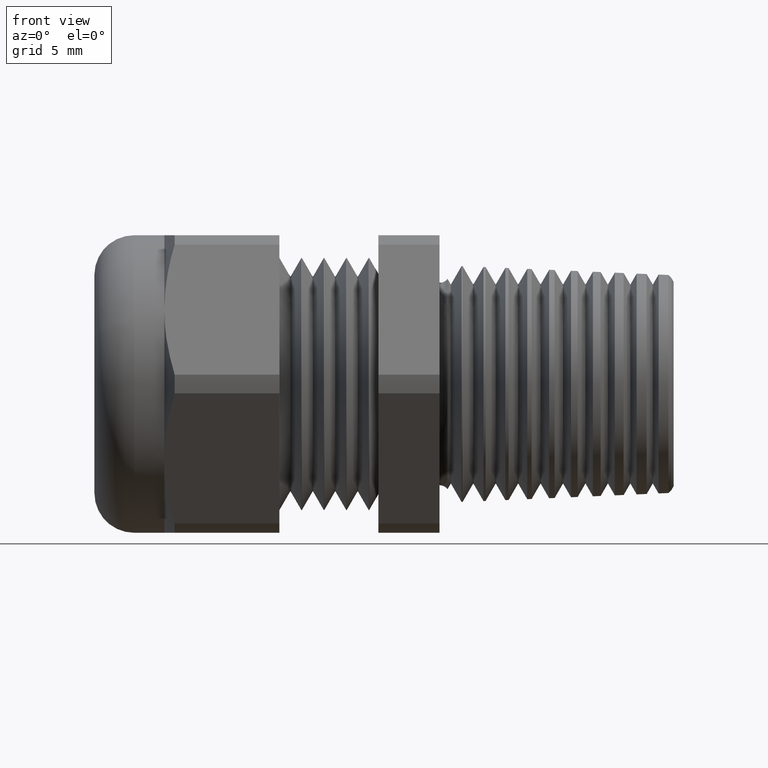
[diagram: clean part render]
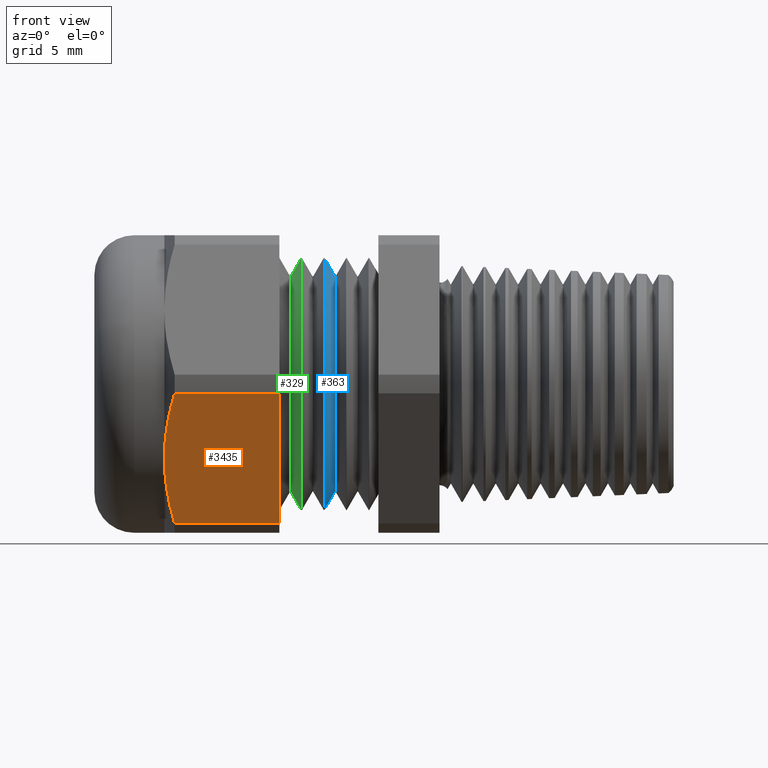
[diagram: same view with three faces highlighted in distinct colors, each labeled with its STEP entity id]
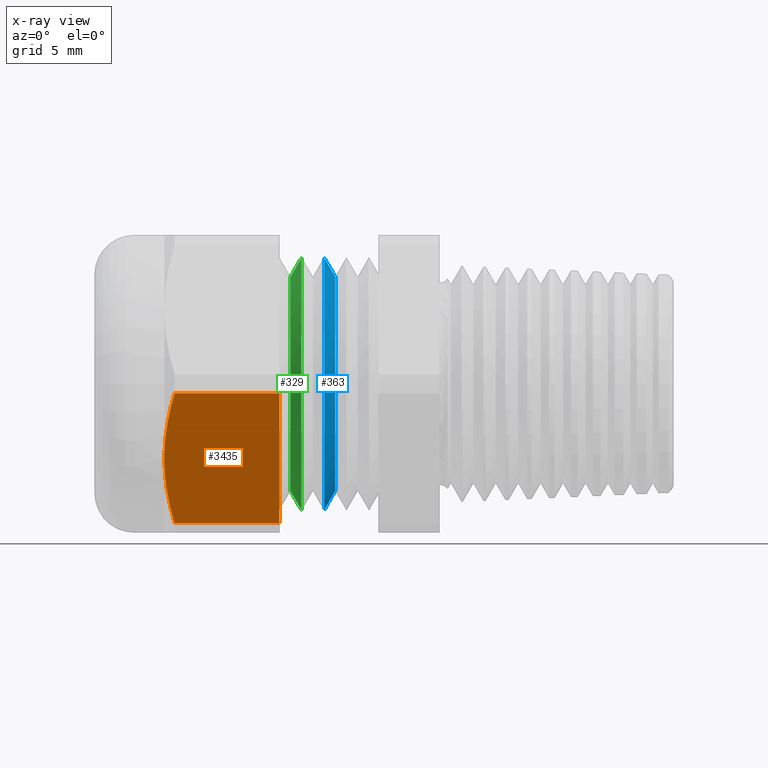
[diagram: x-ray of the same camera — body ghosted, the three highlighted faces saturated]
A machine part, front view with three faces highlighted in distinct colors.
The next image is the same camera in x-ray (body ghosted, the three faces saturated) — at least one of them is partly hidden behind the body in this view.
Their STEP definitions:

[orange] entity #3435 — the highlighted planar face has unit normal (0, -0.866, -0.5).
#865 = CARTESIAN_POINT ( 'NONE',  ( -0.4037500000000000500, -0.2301881248222757400, -0.3513024725088117500 ) ) ;
#866 = DIRECTION ( 'NONE',  ( 1.000000000000000000, -0.0000000000000000000, -0.0000000000000000000 ) ) ;
#867 = VECTOR ( 'NONE', #866, 39.37007874015748100 ) ;
#868 = CARTESIAN_POINT ( 'NONE',  ( -1.893568786317334100, -0.2301881248222757400, -0.3513024725088117500 ) ) ;
#869 = LINE ( 'NONE', #868, #867 ) ;
#1099 = CARTESIAN_POINT ( 'NONE',  ( -0.6677692378864669200, -0.2301881248222757400, -0.3513024725088117500 ) ) ;
#1543 = DIRECTION ( 'NONE',  ( 0.0000000000000000000, 0.4999999999999998300, -0.8660254037844386000 ) ) ;
#1544 = DIRECTION ( 'NONE',  ( 0.0000000000000000000, -0.8660254037844387100, -0.4999999999999998900 ) ) ;
#1546 = CARTESIAN_POINT ( 'NONE',  ( -1.893568786317334100, -0.4193309280160532100, -0.02369752749118828400 ) ) ;
#1547 = AXIS2_PLACEMENT_3D ( 'NONE', #1546, #1544, #1543 ) ;
#1549 = FACE_OUTER_BOUND ( 'NONE', #3437, .T. ) ;
#1554 = PLANE ( 'NONE',  #1547 ) ;
#1570 = B_SPLINE_CURVE_WITH_KNOTS ( 'NONE', 3,
 ( #1627, #1626, #1625, #1624, #1623, #1622 ),
 .UNSPECIFIED., .F., .F.,
 ( 4, 2, 4 ),
 ( 2.361310733801481900E-007, 0.002424044080837156200, 0.004847852030600932100 ),
 .UNSPECIFIED. ) ;
#1571 = CARTESIAN_POINT ( 'NONE',  ( -0.6937499999999999800, -0.3247595264191643900, -0.1874999999999999200 ) ) ;
#1598 = CARTESIAN_POINT ( 'NONE',  ( -0.6677692378864669200, -0.2301881248222757400, -0.3513024725088117500 ) ) ;
#1599 = CARTESIAN_POINT ( 'NONE',  ( -0.6758195584202751900, -0.2456692767811521300, -0.3244883307563435900 ) ) ;
#1600 = CARTESIAN_POINT ( 'NONE',  ( -0.6823587424992738600, -0.2612741988924826000, -0.2974598128113639100 ) ) ;
#1601 = CARTESIAN_POINT ( 'NONE',  ( -0.6890958449295795400, -0.2849331685521923600, -0.2564812753060161700 ) ) ;
#1602 = CARTESIAN_POINT ( 'NONE',  ( -0.6908293426401993500, -0.2928614439435945300, -0.2427490995117096400 ) ) ;
#1603 = CARTESIAN_POINT ( 'NONE',  ( -0.6931602879428225800, -0.3088110433031368000, -0.2151235830606142700 ) ) ;
#1604 = CARTESIAN_POINT ( 'NONE',  ( -0.6937500000000000900, -0.3168132821342499200, -0.2012632988308260800 ) ) ;
#1605 = CARTESIAN_POINT ( 'NONE',  ( -0.6937499999999999800, -0.3247595264191643900, -0.1874999999999999200 ) ) ;
#1610 = B_SPLINE_CURVE_WITH_KNOTS ( 'NONE', 3,
 ( #1605, #1604, #1603, #1602, #1601, #1600, #1599, #1598 ),
 .UNSPECIFIED., .F., .F.,
 ( 4, 2, 2, 4 ),
 ( 0.004847852030600932100, 0.006051560003637237300, 0.007255267976673545100, 0.009662683922746159000 ),
 .UNSPECIFIED. ) ;
#1622 = CARTESIAN_POINT ( 'NONE',  ( -0.6937499999999999800, -0.3247595264191643900, -0.1874999999999999200 ) ) ;
#1623 = CARTESIAN_POINT ( 'NONE',  ( -0.6937499999999999800, -0.3407602263397259100, -0.1597859747809244600 ) ) ;
#1624 = CARTESIAN_POINT ( 'NONE',  ( -0.6913537581776820800, -0.3566287773148729100, -0.1323008382494728400 ) ) ;
#1625 = CARTESIAN_POINT ( 'NONE',  ( -0.6823975651380708200, -0.3881362572794259700, -0.07772828213240874600 ) ) ;
#1626 = CARTESIAN_POINT ( 'NONE',  ( -0.6758577677325461300, -0.4037762977196653900, -0.05063893745748192900 ) ) ;
#1627 = CARTESIAN_POINT ( 'NONE',  ( -0.6677692378864669200, -0.4193309280160532100, -0.02369752749118828700 ) ) ;
#1653 = DIRECTION ( 'NONE',  ( 0.0000000000000000000, -0.4999999999999998300, 0.8660254037844386000 ) ) ;
#1654 = VECTOR ( 'NONE', #1653, 39.37007874015748900 ) ;
#1655 = CARTESIAN_POINT ( 'NONE',  ( -0.4037499999999999400, -0.2452595264191646000, -0.3251980392017256900 ) ) ;
#1656 = LINE ( 'NONE', #1655, #1654 ) ;
#2475 = CARTESIAN_POINT ( 'NONE',  ( -0.6677692378864669200, -0.4193309280160532100, -0.02369752749118828700 ) ) ;
#2499 = DIRECTION ( 'NONE',  ( 1.000000000000000000, -0.0000000000000000000, -0.0000000000000000000 ) ) ;
#2500 = VECTOR ( 'NONE', #2499, 39.37007874015748100 ) ;
#2501 = CARTESIAN_POINT ( 'NONE',  ( -1.893568786317334100, -0.4193309280160532100, -0.02369752749118828400 ) ) ;
#2502 = LINE ( 'NONE', #2501, #2500 ) ;
#2547 = CARTESIAN_POINT ( 'NONE',  ( -0.4037500000000000500, -0.4193309280160532100, -0.02369752749118828400 ) ) ;
#3025 = EDGE_CURVE ( 'NONE', #3143, #3027, #869, .T. ) ;
#3027 = VERTEX_POINT ( 'NONE', #865 ) ;
#3143 = VERTEX_POINT ( 'NONE', #1099 ) ;
#3432 = ORIENTED_EDGE ( 'NONE', *, *, #3468, .T. ) ;
#3435 = ADVANCED_FACE ( 'NONE', ( #1549 ), #1554, .T. ) ;
#3437 = EDGE_LOOP ( 'NONE', ( #3442, #3432, #3464, #3472, #3478 ) ) ;
#3442 = ORIENTED_EDGE ( 'NONE', *, *, #3972, .F. ) ;
#3463 = VERTEX_POINT ( 'NONE', #1571 ) ;
#3464 = ORIENTED_EDGE ( 'NONE', *, *, #3477, .T. ) ;
#3468 = EDGE_CURVE ( 'NONE', #3954, #3463, #1570, .T. ) ;
#3472 = ORIENTED_EDGE ( 'NONE', *, *, #3025, .T. ) ;
#3477 = EDGE_CURVE ( 'NONE', #3463, #3143, #1610, .T. ) ;
#3478 = ORIENTED_EDGE ( 'NONE', *, *, #3484, .T. ) ;
#3484 = EDGE_CURVE ( 'NONE', #3027, #3977, #1656, .T. ) ;
#3954 = VERTEX_POINT ( 'NONE', #2475 ) ;
#3972 = EDGE_CURVE ( 'NONE', #3954, #3977, #2502, .T. ) ;
#3977 = VERTEX_POINT ( 'NONE', #2547 ) ;

[blue] entity #363 — the highlighted conical surface has half-angle 60 deg.
#121 = CARTESIAN_POINT ( 'NONE',  ( -0.2628611240625034500, 0.0000000000000000000, -0.2698875000000000000 ) ) ;
#136 = CARTESIAN_POINT ( 'NONE',  ( -0.2906388888888888900, 3.894248205155160100E-017, -0.3180000000000000000 ) ) ;
#161 = CARTESIAN_POINT ( 'NONE',  ( -0.2628611240625034500, 3.599653839163763600E-017, 0.2698875000000000000 ) ) ;
#181 = LINE ( 'NONE', #193, #192 ) ;
#190 = CARTESIAN_POINT ( 'NONE',  ( -0.2906388888888888900, 0.0000000000000000000, 0.3180000000000000000 ) ) ;
#191 = DIRECTION ( 'NONE',  ( -0.4999999999999947800, 1.060540212046017300E-016, -0.8660254037844417100 ) ) ;
#192 = VECTOR ( 'NONE', #191, 39.37007874015748100 ) ;
#193 = CARTESIAN_POINT ( 'NONE',  ( -0.2906388888888888900, 3.894248205155160100E-017, -0.3180000000000000000 ) ) ;
#304 = EDGE_CURVE ( 'NONE', #1291, #1097, #2691, .T. ) ;
#363 = ADVANCED_FACE ( 'NONE', ( #2828 ), #2830, .T. ) ;
#364 = ORIENTED_EDGE ( 'NONE', *, *, #304, .F. ) ;
#374 = EDGE_LOOP ( 'NONE', ( #378, #364, #407, #406 ) ) ;
#378 = ORIENTED_EDGE ( 'NONE', *, *, #1401, .F. ) ;
#406 = ORIENTED_EDGE ( 'NONE', *, *, #3971, .T. ) ;
#407 = ORIENTED_EDGE ( 'NONE', *, *, #460, .T. ) ;
#460 = EDGE_CURVE ( 'NONE', #1291, #1508, #4112, .T. ) ;
#1097 = VERTEX_POINT ( 'NONE', #121 ) ;
#1204 = VERTEX_POINT ( 'NONE', #136 ) ;
#1291 = VERTEX_POINT ( 'NONE', #161 ) ;
#1401 = EDGE_CURVE ( 'NONE', #1097, #1204, #181, .T. ) ;
#1508 = VERTEX_POINT ( 'NONE', #190 ) ;
#2503 = DIRECTION ( 'NONE',  ( 0.0000000000000000000, 0.0000000000000000000, -1.000000000000000000 ) ) ;
#2504 = DIRECTION ( 'NONE',  ( 1.000000000000000000, -0.0000000000000000000, -0.0000000000000000000 ) ) ;
#2505 = AXIS2_PLACEMENT_3D ( 'NONE', #2512, #2504, #2503 ) ;
#2506 = CIRCLE ( 'NONE', #2505, 0.3180000000000000000 ) ;
#2512 = CARTESIAN_POINT ( 'NONE',  ( -0.2906388888888888900, 0.0000000000000000000, 0.0000000000000000000 ) ) ;
#2689 = AXIS2_PLACEMENT_3D ( 'NONE', #2692, #2695, #2694 ) ;
#2691 = CIRCLE ( 'NONE', #2689, 0.2698875000000000000 ) ;
#2692 = CARTESIAN_POINT ( 'NONE',  ( -0.2628611240625034500, 0.0000000000000000000, 0.0000000000000000000 ) ) ;
#2694 = DIRECTION ( 'NONE',  ( 0.0000000000000000000, 0.0000000000000000000, -1.000000000000000000 ) ) ;
#2695 = DIRECTION ( 'NONE',  ( 1.000000000000000000, -0.0000000000000000000, -0.0000000000000000000 ) ) ;
#2825 = AXIS2_PLACEMENT_3D ( 'NONE', #2829, #2831, #2827 ) ;
#2827 = DIRECTION ( 'NONE',  ( 0.0000000000000000000, 0.0000000000000000000, 1.000000000000000000 ) ) ;
#2828 = FACE_OUTER_BOUND ( 'NONE', #374, .T. ) ;
#2829 = CARTESIAN_POINT ( 'NONE',  ( -0.2906388888888888900, 0.0000000000000000000, 0.0000000000000000000 ) ) ;
#2830 = CONICAL_SURFACE ( 'NONE', #2825, 0.3180000000000000000, 1.047197551196603800 ) ;
#2831 = DIRECTION ( 'NONE',  ( -1.000000000000000000, 0.0000000000000000000, 0.0000000000000000000 ) ) ;
#3971 = EDGE_CURVE ( 'NONE', #1508, #1204, #2506, .T. ) ;
#4104 = DIRECTION ( 'NONE',  ( -0.4999999999999947800, 0.0000000000000000000, 0.8660254037844417100 ) ) ;
#4105 = VECTOR ( 'NONE', #4104, 39.37007874015748100 ) ;
#4111 = CARTESIAN_POINT ( 'NONE',  ( -0.2906388888888888900, 0.0000000000000000000, 0.3180000000000000000 ) ) ;
#4112 = LINE ( 'NONE', #4111, #4105 ) ;

[green] entity #329 — the highlighted conical surface has half-angle 60 deg.
#317 = EDGE_CURVE ( 'NONE', #3212, #3217, #2723, .T. ) ;
#329 = ADVANCED_FACE ( 'NONE', ( #2746 ), #2797, .T. ) ;
#330 = EDGE_LOOP ( 'NONE', ( #332, #339, #333, #343 ) ) ;
#332 = ORIENTED_EDGE ( 'NONE', *, *, #3375, .F. ) ;
#333 = ORIENTED_EDGE ( 'NONE', *, *, #3223, .T. ) ;
#339 = ORIENTED_EDGE ( 'NONE', *, *, #317, .T. ) ;
#343 = ORIENTED_EDGE ( 'NONE', *, *, #3779, .F. ) ;
#1167 = CARTESIAN_POINT ( 'NONE',  ( -0.3759722351736145600, 0.0000000000000000000, -0.2698875000000000000 ) ) ;
#1182 = CARTESIAN_POINT ( 'NONE',  ( -0.3759722351736145600, 3.599653839163763600E-017, 0.2698875000000000000 ) ) ;
#1217 = DIRECTION ( 'NONE',  ( 0.5000000000000020000, 0.0000000000000000000, -0.8660254037844374900 ) ) ;
#1218 = VECTOR ( 'NONE', #1217, 39.37007874015748100 ) ;
#1219 = CARTESIAN_POINT ( 'NONE',  ( -0.3759722351736145600, 0.0000000000000000000, -0.2698875000000000000 ) ) ;
#1220 = LINE ( 'NONE', #1219, #1218 ) ;
#1368 = CARTESIAN_POINT ( 'NONE',  ( -0.3481944703472285000, 3.894248205155160100E-017, -0.3180000000000000000 ) ) ;
#1414 = CARTESIAN_POINT ( 'NONE',  ( -0.3481944703472285000, 0.0000000000000000000, 0.3180000000000000000 ) ) ;
#1415 = DIRECTION ( 'NONE',  ( 0.5000000000000020000, 1.060540212046012000E-016, 0.8660254037844374900 ) ) ;
#1416 = VECTOR ( 'NONE', #1415, 39.37007874015748100 ) ;
#1417 = CARTESIAN_POINT ( 'NONE',  ( -0.3759722351736145600, 3.305059473172368400E-017, 0.2698875000000000000 ) ) ;
#1418 = LINE ( 'NONE', #1417, #1416 ) ;
#2199 = DIRECTION ( 'NONE',  ( 0.0000000000000000000, 0.0000000000000000000, -1.000000000000000000 ) ) ;
#2200 = DIRECTION ( 'NONE',  ( 1.000000000000000000, -0.0000000000000000000, -0.0000000000000000000 ) ) ;
#2201 = CARTESIAN_POINT ( 'NONE',  ( -0.3481944703472285000, 0.0000000000000000000, 0.0000000000000000000 ) ) ;
#2202 = AXIS2_PLACEMENT_3D ( 'NONE', #2201, #2200, #2199 ) ;
#2206 = CIRCLE ( 'NONE', #2202, 0.3180000000000000000 ) ;
#2719 = DIRECTION ( 'NONE',  ( 0.0000000000000000000, 0.0000000000000000000, -1.000000000000000000 ) ) ;
#2720 = DIRECTION ( 'NONE',  ( 1.000000000000000000, -0.0000000000000000000, -0.0000000000000000000 ) ) ;
#2721 = CARTESIAN_POINT ( 'NONE',  ( -0.3759722351736145600, 0.0000000000000000000, 0.0000000000000000000 ) ) ;
#2722 = AXIS2_PLACEMENT_3D ( 'NONE', #2721, #2720, #2719 ) ;
#2723 = CIRCLE ( 'NONE', #2722, 0.2698875000000000000 ) ;
#2746 = FACE_OUTER_BOUND ( 'NONE', #330, .T. ) ;
#2795 = DIRECTION ( 'NONE',  ( 0.0000000000000000000, 0.0000000000000000000, -1.000000000000000000 ) ) ;
#2796 = DIRECTION ( 'NONE',  ( 1.000000000000000000, -0.0000000000000000000, -0.0000000000000000000 ) ) ;
#2797 = CONICAL_SURFACE ( 'NONE', #2799, 0.2698875000000000000, 1.047197551196595400 ) ;
#2799 = AXIS2_PLACEMENT_3D ( 'NONE', #2800, #2796, #2795 ) ;
#2800 = CARTESIAN_POINT ( 'NONE',  ( -0.3759722351736145600, 0.0000000000000000000, 0.0000000000000000000 ) ) ;
#3212 = VERTEX_POINT ( 'NONE', #1182 ) ;
#3217 = VERTEX_POINT ( 'NONE', #1167 ) ;
#3223 = EDGE_CURVE ( 'NONE', #3217, #3365, #1220, .T. ) ;
#3365 = VERTEX_POINT ( 'NONE', #1368 ) ;
#3375 = EDGE_CURVE ( 'NONE', #3212, #3376, #1418, .T. ) ;
#3376 = VERTEX_POINT ( 'NONE', #1414 ) ;
#3779 = EDGE_CURVE ( 'NONE', #3376, #3365, #2206, .T. ) ;